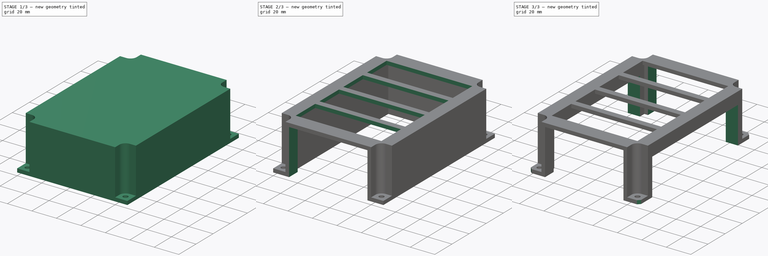
[diagram: build sequence overview — one tinted view per stage of 3, left to right]
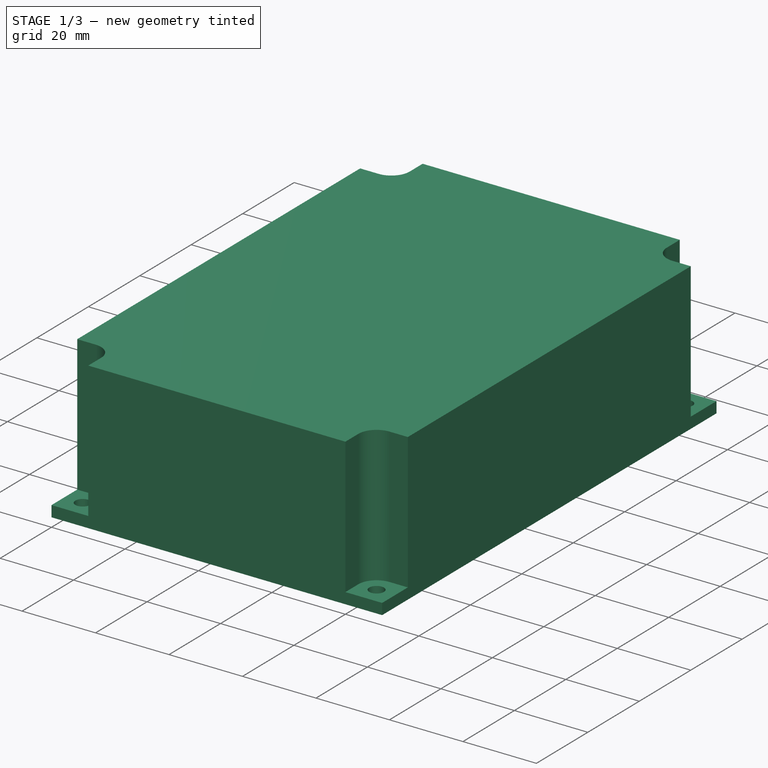
[diagram: stage 1 of 3 — iso view after this stage's code; geometry added in this stage tinted green]
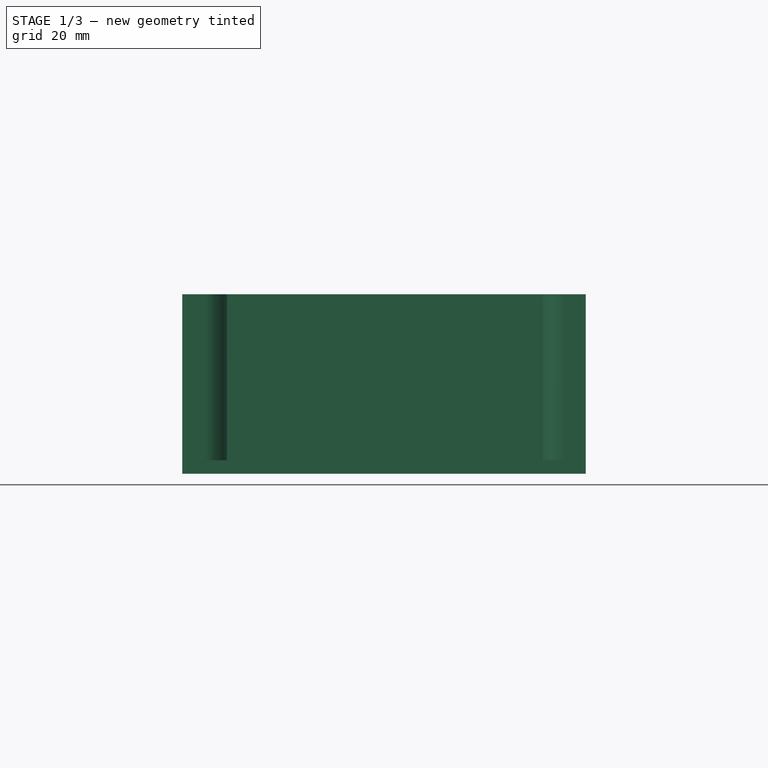
[diagram: stage 1 of 3 — front view after this stage's code; geometry added in this stage tinted green]
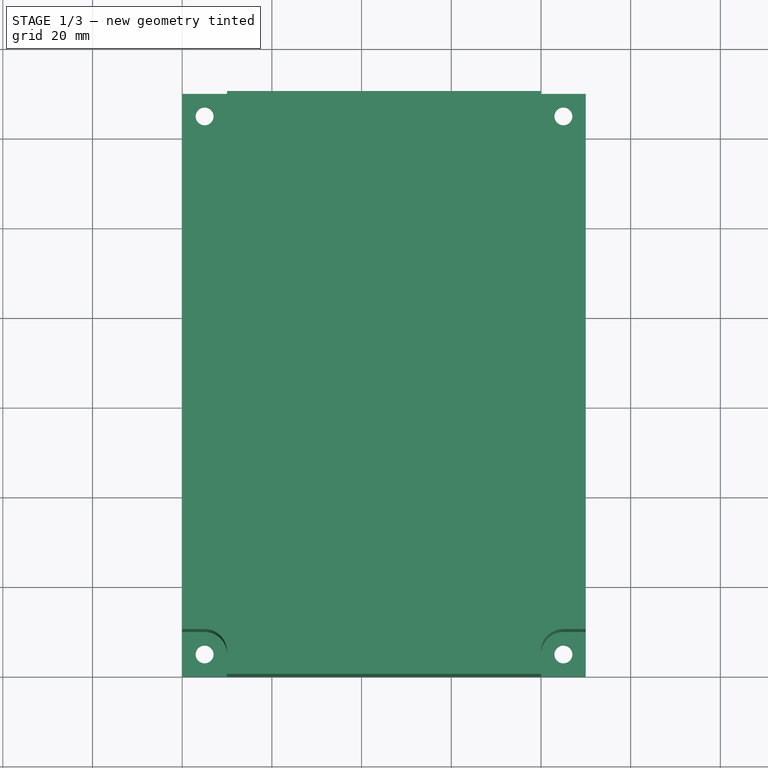
[diagram: stage 1 of 3 — top view after this stage's code; geometry added in this stage tinted green]
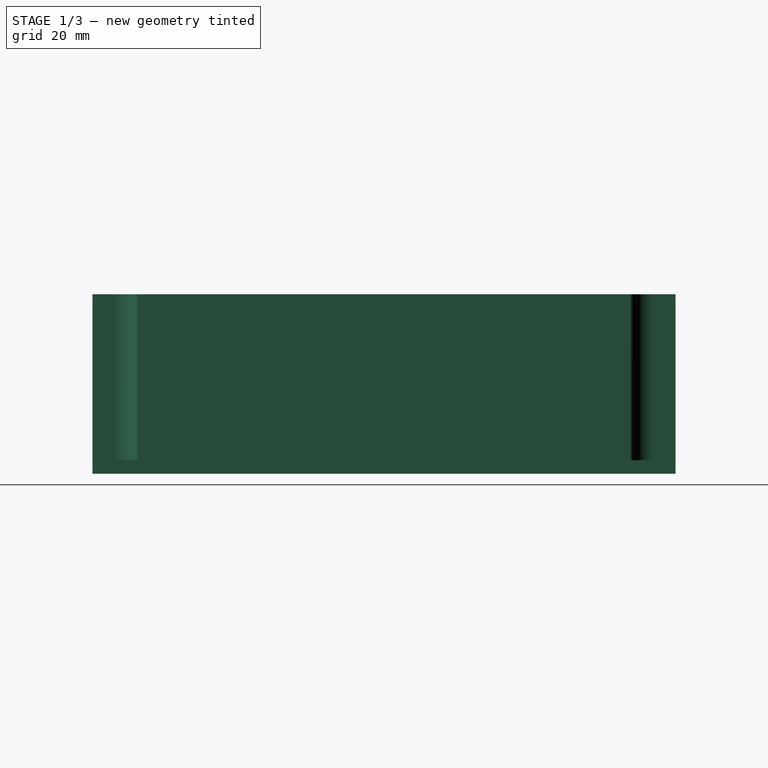
[diagram: stage 1 of 3 — right view after this stage's code; geometry added in this stage tinted green]
FCSTD DOCUMENT  (FreeCAD 0.18R14555 (Git shallow))
Label: controller-cover
License: All rights reserved
LicenseURL: http://en.wikipedia.org/wiki/All_rights_reserved
objects: Sketcher::SketchObject×7, PartDesign::Pocket×6, PartDesign::Pad×1, PartDesign::Chamfer×1, PartDesign::Body×1
note: 23 computed .brp shape members not serialized (recipe doc carries the construction recipe); baked Part::Feature solids carry a one-line shape summary decoded from their .brp

FEATURE [Sketcher::SketchObject] Sketch
  MapMode = 5
  Support = -> [XY_Plane]
  sketch-geometry (15):
    g0: LineSegment StartX=0 StartY=0 StartZ=0 EndX=90 EndY=0 EndZ=0
    g1: LineSegment StartX=90 StartY=0 StartZ=0 EndX=90 EndY=130 EndZ=0
    g2: LineSegment StartX=90 StartY=130 StartZ=0 EndX=0 EndY=130 EndZ=0
    g3: LineSegment StartX=0 StartY=130 StartZ=0 EndX=0 EndY=0 EndZ=0
    g4: LineSegment [constr] StartX=5 StartY=125 StartZ=0 EndX=85 EndY=125 EndZ=0
    g5: LineSegment [constr] StartX=85 StartY=125 StartZ=0 EndX=85 EndY=5 EndZ=0
    g6: LineSegment [constr] StartX=85 StartY=5 StartZ=0 EndX=5 EndY=5 EndZ=0
    g7: LineSegment [constr] StartX=5 StartY=5 StartZ=0 EndX=5 EndY=125 EndZ=0
    g8: LineSegment [constr] StartX=5 StartY=125 StartZ=0 EndX=0 EndY=130 EndZ=0
    g9: LineSegment [constr] StartX=85 StartY=125 StartZ=0 EndX=90 EndY=130 EndZ=0
    g10: LineSegment [constr] StartX=85 StartY=5 StartZ=0 EndX=90 EndY=0 EndZ=0
    g11: Circle CenterX=5 CenterY=125 CenterZ=0 NormalX=0 NormalY=0 NormalZ=1 AngleXU=0 Radius=2
    g12: Circle CenterX=85 CenterY=125 CenterZ=0 NormalX=0 NormalY=0 NormalZ=1 AngleXU=0 Radius=2
    g13: Circle CenterX=85 CenterY=5 CenterZ=0 NormalX=0 NormalY=0 NormalZ=1 AngleXU=0 Radius=2
    g14: Circle CenterX=5 CenterY=5 CenterZ=0 NormalX=0 NormalY=0 NormalZ=1 AngleXU=0 Radius=2
  constraints (37):
    c: Coincident(g0,g1)
    c: Coincident(g1,g2)
    c: Coincident(g2,g3)
    c: Coincident(g3,g0)
    c: Horizontal(g0)
    c: Horizontal(g2)
    c: Vertical(g1)
    c: Vertical(g3)
    c: Coincident(g0,g-1)
    c: DistanceX(g2,g2) = 90
    c: DistanceY(g1,g1) = 130
    c: Coincident(g4,g5)
    c: Coincident(g5,g6)
    c: Coincident(g6,g7)
    c: Coincident(g7,g4)
    c: Horizontal(g4)
    c: Horizontal(g6)
    c: Vertical(g5)
    c: Vertical(g7)
    c: Coincident(g8,g4)
    c: Coincident(g8,g2)
    c: Coincident(g9,g4)
    c: Coincident(g9,g1)
    c: Coincident(g10,g5)
    c: Coincident(g10,g0)
    c: Equal(g10,g9)
    c: Equal(g9,g8)
    c: DistanceX(g2,g4) = 5
    c: DistanceY(g4,g2) = 5
    c: Coincident(g11,g4)
    c: Coincident(g12,g4)
    c: Coincident(g13,g5)
    c: Coincident(g14,g6)
    c: Equal(g14,g13)
    c: Equal(g13,g12)
    c: Equal(g12,g11)
    c: Radius(g11) = 2
FEATURE [PartDesign::Pad] Pad
  Length = 40
  Length2 = 100
  Profile = -> Sketch
  Type = 0
FEATURE [Sketcher::SketchObject] Sketch001
  ExternalGeometry = -> [Pad]
  MapMode = 5
  Placement = pos=(0,0,40) rot=(0,0,1;0rad)
  Support = -> [Pad]
  sketch-geometry (20):
    g0: ArcOfCircle CenterX=5 CenterY=125 CenterZ=0 NormalX=0 NormalY=0 NormalZ=1 AngleXU=0 Radius=5 StartAngle=4.71239 EndAngle=6.28319
    g1: LineSegment StartX=5 StartY=120 StartZ=0 EndX=0 EndY=120 EndZ=0
    g2: LineSegment StartX=10 StartY=125 StartZ=0 EndX=10 EndY=130 EndZ=0
    g3: LineSegment StartX=10 StartY=130 StartZ=0 EndX=0 EndY=130 EndZ=0
    g4: LineSegment StartX=0 StartY=130 StartZ=0 EndX=0 EndY=120 EndZ=0
    g5: LineSegment StartX=80 StartY=125 StartZ=0 EndX=80 EndY=130 EndZ=0
    g6: LineSegment StartX=80 StartY=130 StartZ=0 EndX=90 EndY=130 EndZ=0
    g7: LineSegment StartX=90 StartY=130 StartZ=0 EndX=90 EndY=120 EndZ=0
    g8: LineSegment StartX=90 StartY=120 StartZ=0 EndX=85 EndY=120 EndZ=0
    g9: ArcOfCircle CenterX=85 CenterY=125 CenterZ=0 NormalX=0 NormalY=0 NormalZ=1 AngleXU=0 Radius=5 StartAngle=3.14159 EndAngle=4.71239
    g10: LineSegment StartX=80 StartY=5 StartZ=0 EndX=80 EndY=0 EndZ=0
    g11: LineSegment StartX=80 StartY=0 StartZ=0 EndX=90 EndY=0 EndZ=0
    g12: LineSegment StartX=90 StartY=0 StartZ=0 EndX=90 EndY=10 EndZ=0
    g13: LineSegment StartX=90 StartY=10 StartZ=0 EndX=85 EndY=10 EndZ=0
    g14: ArcOfCircle CenterX=85 CenterY=5 CenterZ=0 NormalX=0 NormalY=0 NormalZ=1 AngleXU=0 Radius=5 StartAngle=1.5708 EndAngle=3.14159
    g15: LineSegment StartX=0 StartY=10 StartZ=0 EndX=0 EndY=0 EndZ=0
    g16: LineSegment StartX=0 StartY=0 StartZ=0 EndX=10 EndY=0 EndZ=0
    g17: LineSegment StartX=10 StartY=0 StartZ=0 EndX=10 EndY=5 EndZ=0
    g18: LineSegment StartX=0 StartY=10 StartZ=0 EndX=5 EndY=10 EndZ=0
    g19: ArcOfCircle CenterX=5 CenterY=5 CenterZ=0 NormalX=0 NormalY=0 NormalZ=1 AngleXU=0 Radius=5 StartAngle=0 EndAngle=1.5708
  constraints (48):
    c: Coincident(g0,g-3)
    c: Horizontal(g1)
    c: Tangent(g0,g2) = -1.5708
    c: Coincident(g2,g3)
    c: Horizontal(g3)
    c: Coincident(g3,g4)
    c: Coincident(g4,g1)
    c: Vertical(g4)
    c: Tangent(g1,g0) = 1.5708
    c: Vertical(g2)
    c: Coincident(g3,g-7)
    c: Radius(g0) = 5
    c: Vertical(g5)
    c: Coincident(g5,g6)
    c: Horizontal(g6)
    c: Coincident(g6,g7)
    c: Vertical(g7)
    c: Coincident(g7,g8)
    c: Horizontal(g8)
    c: Coincident(g6,g-7)
    c: Coincident(g9,g-6)
    c: Tangent(g9,g8) = 1.5708
    c: Tangent(g9,g5) = 1.5708
    c: Equal(g0,g9)
    c: Vertical(g10)
    c: Coincident(g10,g11)
    c: Horizontal(g11)
    c: Coincident(g11,g12)
    c: Vertical(g12)
    c: Coincident(g12,g13)
    c: Horizontal(g13)
    c: Tangent(g14,g10) = -1.5708
    c: Tangent(g14,g13) = -1.5708
    c: Coincident(g11,g-8)
    c: Coincident(g14,g-5)
    c: Equal(g14,g9)
    c: Vertical(g15)
    c: Coincident(g15,g16)
    c: Horizontal(g16)
    c: Coincident(g16,g17)
    c: Vertical(g17)
    c: Coincident(g18,g15)
    c: Horizontal(g18)
    c: Tangent(g19,g18) = 1.5708
    c: Tangent(g19,g17) = -1.5708
    c: Coincident(g15,g-1)
    c: Coincident(g19,g-4)
    c: Equal(g19,g14)
FEATURE [PartDesign::Pocket] Pocket
  BaseFeature = -> Pad
  Length = 37
  Length2 = 100
  Profile = -> Sketch001
  Type = 0
FEATURE [Sketcher::SketchObject] Sketch002
  ExternalGeometry = -> [Pocket]
  MapMode = 5
  Placement = pos=(0,0,0) rot=(1,0,0;3.14159rad)
  Support = -> [Pocket]
  sketch-geometry (7):
    g0: LineSegment StartX=10 StartY=-10 StartZ=0 EndX=80 EndY=-10 EndZ=0
    g1: LineSegment StartX=80 StartY=-10 StartZ=0 EndX=80 EndY=-120 EndZ=0
    g2: LineSegment StartX=80 StartY=-120 StartZ=0 EndX=10 EndY=-120 EndZ=0
    g3: LineSegment StartX=10 StartY=-120 StartZ=0 EndX=10 EndY=-10 EndZ=0
    g4: LineSegment [constr] StartX=90 StartY=-130 StartZ=0 EndX=80 EndY=-120 EndZ=0
    g5: LineSegment [constr] StartX=80 StartY=-10 StartZ=0 EndX=90 EndY=0 EndZ=0
    g6: LineSegment [constr] StartX=10 StartY=-10 StartZ=0 EndX=0 EndY=0 EndZ=0
  constraints (18):
    c: Coincident(g0,g1)
    c: Coincident(g1,g2)
    c: Coincident(g2,g3)
    c: Coincident(g3,g0)
    c: Horizontal(g0)
    c: Horizontal(g2)
    c: Vertical(g1)
    c: Vertical(g3)
    c: Coincident(g4,g-3)
    c: Coincident(g4,g1)
    c: Coincident(g5,g0)
    c: Coincident(g5,g-4)
    c: Coincident(g6,g0)
    c: Coincident(g6,g-1)
    c: Equal(g4,g5)
    c: Equal(g5,g6)
    c: DistanceX(g-1,g0) = 10
    c: DistanceY(g0,g-1) = 10
FEATURE [PartDesign::Pocket] Pocket001
  BaseFeature = -> Pocket
  Length = 37
  Length2 = 100
  Profile = -> Sketch002
  Type = 0
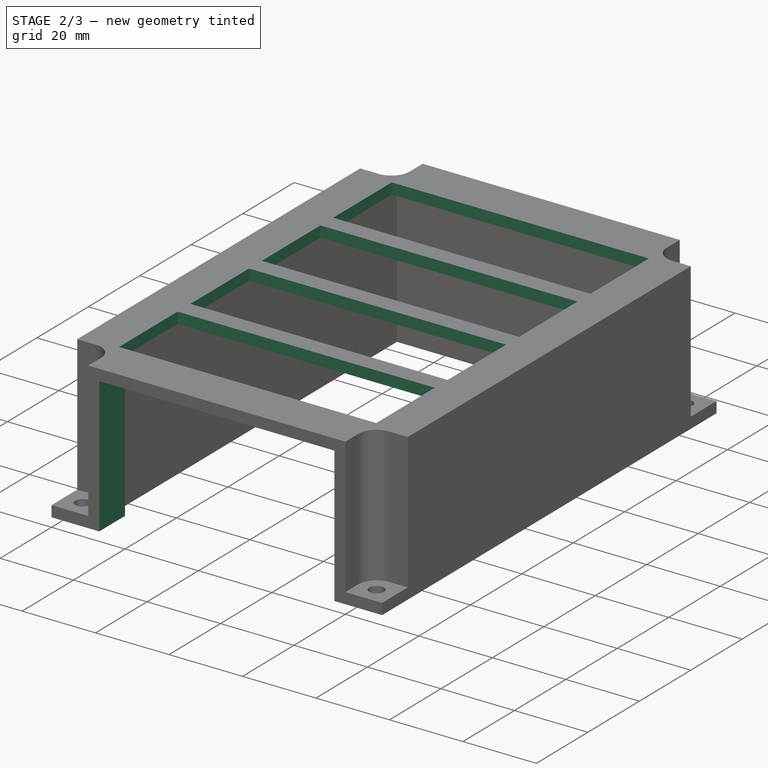
[diagram: stage 2 of 3 — iso view after this stage's code; geometry added in this stage tinted green]
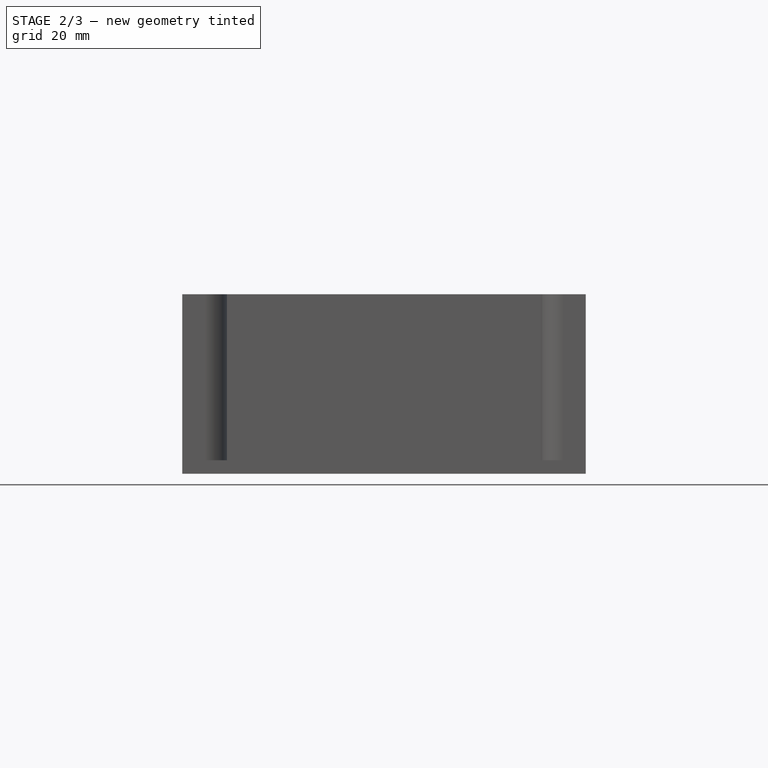
[diagram: stage 2 of 3 — front view after this stage's code; geometry added in this stage tinted green]
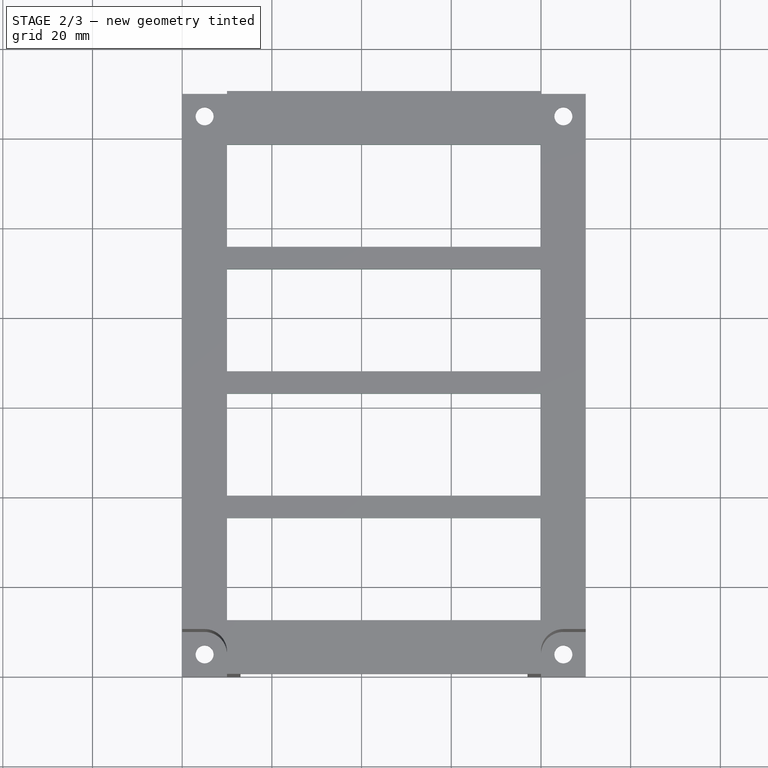
[diagram: stage 2 of 3 — top view after this stage's code; geometry added in this stage tinted green]
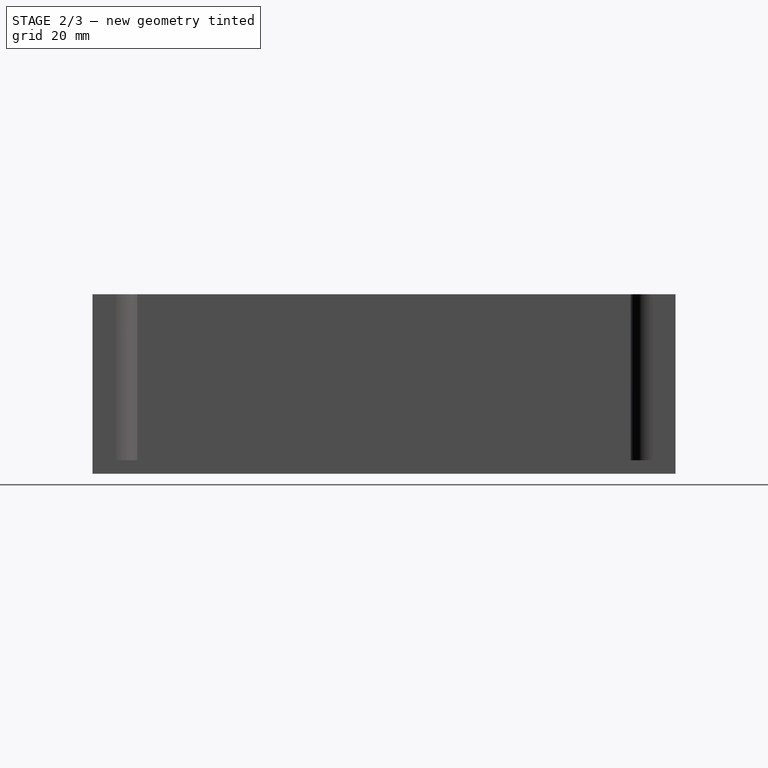
[diagram: stage 2 of 3 — right view after this stage's code; geometry added in this stage tinted green]
FEATURE [Sketcher::SketchObject] Sketch003
  ExternalGeometry = -> [Pocket001]
  MapMode = 5
  Placement = pos=(0,0,0) rot=(1,0,0;1.5708rad)
  Support = -> [Pocket001]
  sketch-geometry (6):
    g0: LineSegment StartX=13 StartY=0 StartZ=0 EndX=77 EndY=0 EndZ=0
    g1: LineSegment StartX=77 StartY=0 StartZ=0 EndX=77 EndY=37 EndZ=0
    g2: LineSegment StartX=77 StartY=37 StartZ=0 EndX=13 EndY=37 EndZ=0
    g3: LineSegment StartX=13 StartY=37 StartZ=0 EndX=13 EndY=0 EndZ=0
    g4: LineSegment [constr] StartX=10 StartY=37 StartZ=0 EndX=13 EndY=37 EndZ=0
    g5: LineSegment [constr] StartX=77 StartY=37 StartZ=0 EndX=80 EndY=37 EndZ=0
  constraints (16):
    c: Coincident(g0,g1)
    c: Coincident(g1,g2)
    c: Coincident(g2,g3)
    c: Coincident(g3,g0)
    c: Horizontal(g0)
    c: Horizontal(g2)
    c: Vertical(g1)
    c: Vertical(g3)
    c: PointOnObject(g0,g-1)
    c: Coincident(g4,g-3)
    c: Coincident(g4,g2)
    c: Horizontal(g4)
    c: Coincident(g5,g1)
    c: Coincident(g5,g-4)
    c: Equal(g5,g4)
    c: DistanceX(g4,g4) = 3
FEATURE [PartDesign::Pocket] Pocket002
  BaseFeature = -> Pocket001
  Length = 10
  Length2 = 100
  Profile = -> Sketch003
  Type = 0
FEATURE [Sketcher::SketchObject] Sketch004
  ExternalGeometry = -> [Pocket002]
  MapMode = 5
  Placement = pos=(0,0,40) rot=(0,0,1;0rad)
  Support = -> [Pocket002]
  sketch-geometry (25):
    g0: LineSegment StartX=10 StartY=118 StartZ=0 EndX=80 EndY=118 EndZ=0
    g1: LineSegment StartX=80 StartY=118 StartZ=0 EndX=80 EndY=95.25 EndZ=0
    g2: LineSegment StartX=80 StartY=95.25 StartZ=0 EndX=10 EndY=95.25 EndZ=0
    g3: LineSegment StartX=10 StartY=95.25 StartZ=0 EndX=10 EndY=118 EndZ=0
    g4: LineSegment StartX=10 StartY=90.25 StartZ=0 EndX=80 EndY=90.25 EndZ=0
    g5: LineSegment StartX=80 StartY=90.25 StartZ=0 EndX=80 EndY=67.5 EndZ=0
    g6: LineSegment StartX=80 StartY=67.5 StartZ=0 EndX=10 EndY=67.5 EndZ=0
    g7: LineSegment StartX=10 StartY=67.5 StartZ=0 EndX=10 EndY=90.25 EndZ=0
    g8: LineSegment StartX=10 StartY=34.75 StartZ=0 EndX=80 EndY=34.75 EndZ=0
    g9: LineSegment StartX=80 StartY=34.75 StartZ=0 EndX=80 EndY=12 EndZ=0
    g10: LineSegment StartX=80 StartY=12 StartZ=0 EndX=10 EndY=12 EndZ=0
    g11: LineSegment StartX=10 StartY=12 StartZ=0 EndX=10 EndY=34.75 EndZ=0
    g12: LineSegment StartX=10 StartY=62.5 StartZ=0 EndX=80 EndY=62.5 EndZ=0
    g13: LineSegment StartX=80 StartY=62.5 StartZ=0 EndX=80 EndY=39.75 EndZ=0
    g14: LineSegment StartX=80 StartY=39.75 StartZ=0 EndX=10 EndY=39.75 EndZ=0
    g15: LineSegment StartX=10 StartY=39.75 StartZ=0 EndX=10 EndY=62.5 EndZ=0
    g16: LineSegment [constr] StartX=10 StartY=34.75 StartZ=0 EndX=10 EndY=39.75 EndZ=0
    g17: LineSegment [constr] StartX=10 StartY=62.5 StartZ=0 EndX=10 EndY=67.5 EndZ=0
    g18: LineSegment [constr] StartX=10 StartY=90.25 StartZ=0 EndX=10 EndY=95.25 EndZ=0
    g19: LineSegment [constr] StartX=80 StartY=90.25 StartZ=0 EndX=80 EndY=95.25 EndZ=0
    g20: LineSegment [constr] StartX=80 StartY=62.5 StartZ=0 EndX=80 EndY=67.5 EndZ=0
    g21: LineSegment [constr] StartX=80 StartY=34.75 StartZ=0 EndX=80 EndY=39.75 EndZ=0
    g22: LineSegment [constr] StartX=10 StartY=0 StartZ=0 EndX=10 EndY=12 EndZ=0
    g23: LineSegment [constr] StartX=80 StartY=0 StartZ=0 EndX=80 EndY=12 EndZ=0
    g24: LineSegment [constr] StartX=10 StartY=118 StartZ=0 EndX=10 EndY=130 EndZ=0
  constraints (66):
    c: Coincident(g0,g1)
    c: Coincident(g1,g2)
    c: Coincident(g2,g3)
    c: Coincident(g3,g0)
    c: Horizontal(g0)
    c: Horizontal(g2)
    c: Vertical(g1)
    c: Vertical(g3)
    c: Coincident(g4,g5)
    c: Coincident(g5,g6)
    c: Coincident(g6,g7)
    c: Coincident(g7,g4)
    c: Horizontal(g4)
    c: Horizontal(g6)
    c: Vertical(g5)
    c: Vertical(g7)
    c: Coincident(g8,g9)
    c: Coincident(g9,g10)
    c: Coincident(g10,g11)
    c: Coincident(g11,g8)
    c: Horizontal(g8)
    c: Horizontal(g10)
    c: Vertical(g9)
    c: Vertical(g11)
    c: Coincident(g12,g13)
    c: Coincident(g13,g14)
    c: Coincident(g14,g15)
    c: Coincident(g15,g12)
    c: Horizontal(g12)
    c: Horizontal(g14)
    c: Vertical(g13)
    c: Vertical(g15)
    c: Coincident(g16,g8)
    c: Coincident(g16,g14)
    c: Vertical(g16)
    c: Coincident(g17,g12)
    c: Coincident(g17,g6)
    c: Coincident(g18,g4)
    c: Coincident(g18,g2)
    c: Coincident(g19,g4)
    c: Coincident(g19,g1)
    c: Coincident(g20,g12)
    c: Coincident(g20,g5)
    c: Coincident(g21,g8)
    c: Coincident(g21,g13)
    c: Vertical(g18)
    c: Vertical(g17)
    c: Vertical(g19)
    c: Vertical(g20)
    c: Vertical(g21)
    c: Equal(g11,g15)
    c: Equal(g15,g7)
    c: Equal(g7,g3)
    c: Equal(g18,g17)
    c: Equal(g17,g16)
    c: Coincident(g22,g-4)
    c: Coincident(g22,g10)
    c: Vertical(g22)
    c: Coincident(g23,g-4)
    c: Coincident(g23,g9)
    c: Vertical(g23)
    c: Coincident(g24,g0)
    c: Coincident(g24,g-3)
    c: Equal(g24,g22)
    c: DistanceY(g24,g24) = 12
    c: DistanceY(g18,g18) = 5
FEATURE [PartDesign::Pocket] Pocket003
  BaseFeature = -> Pocket002
  Length = 3
  Length2 = 100
  Profile = -> Sketch004
  Type = 0
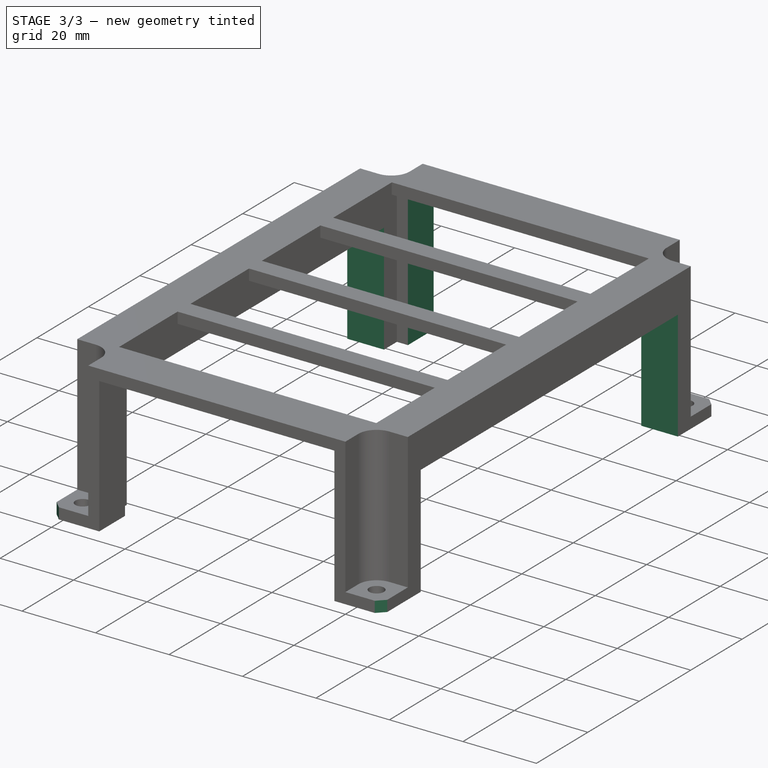
[diagram: stage 3 of 3 — iso view after this stage's code; geometry added in this stage tinted green]
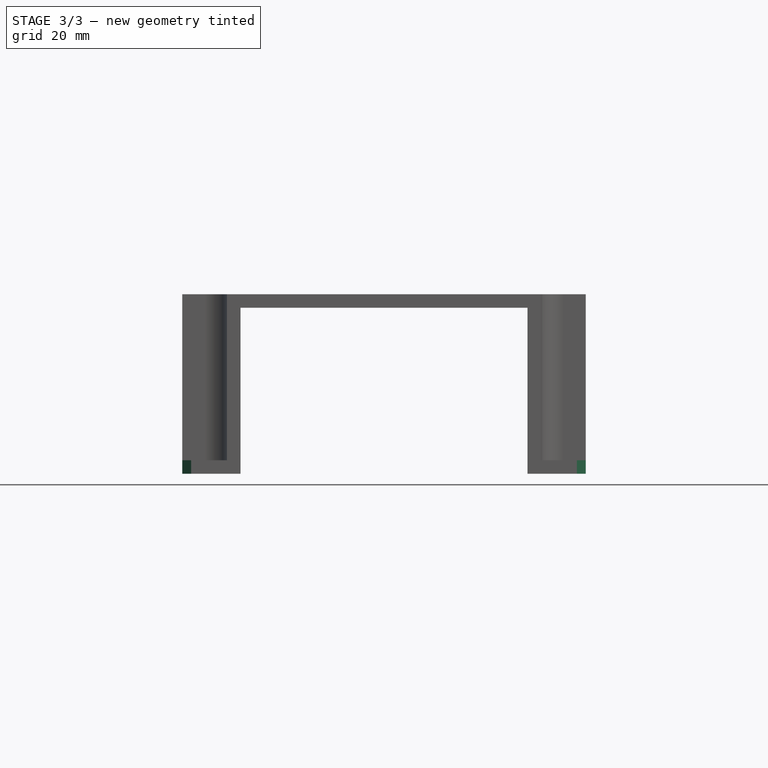
[diagram: stage 3 of 3 — front view after this stage's code; geometry added in this stage tinted green]
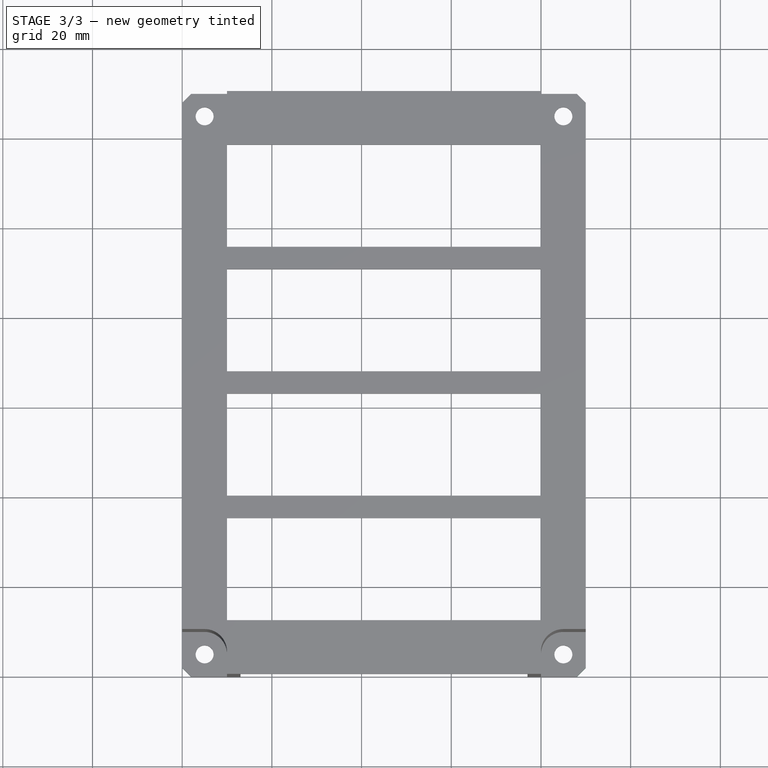
[diagram: stage 3 of 3 — top view after this stage's code; geometry added in this stage tinted green]
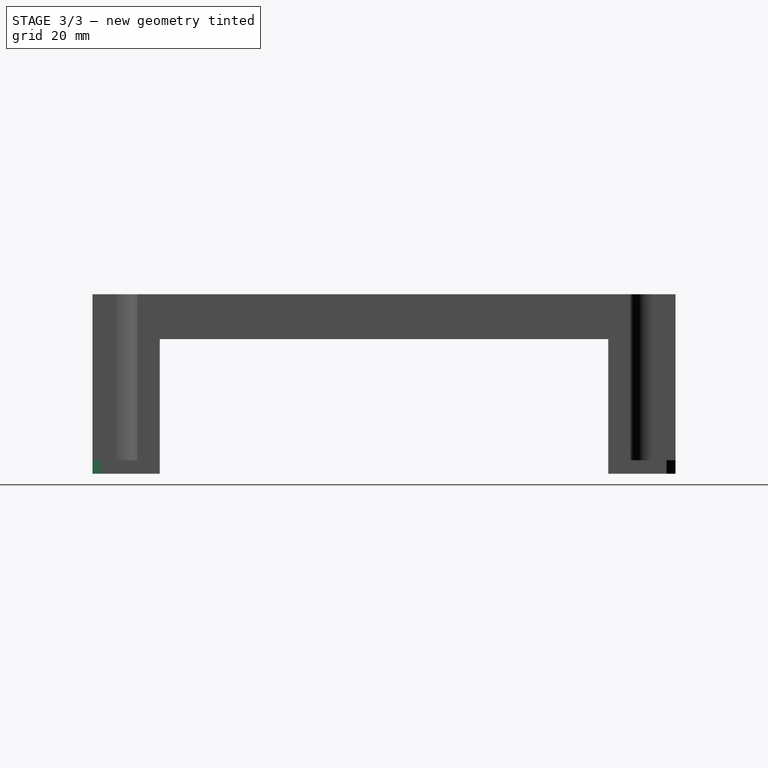
[diagram: stage 3 of 3 — right view after this stage's code; geometry added in this stage tinted green]
FEATURE [PartDesign::Chamfer] Chamfer
  Base = -> Pocket003 [Edge6,Edge32,Edge12,Edge82]
  BaseFeature = -> Pocket003
  Size = 2
FEATURE [Sketcher::SketchObject] Sketch005
  ExternalGeometry = -> [Chamfer]
  MapMode = 5
  Placement = pos=(0,0,0) rot=(0.57735,-0.57735,-0.57735;2.0944rad)
  Support = -> [Chamfer]
  sketch-geometry (6):
    g0: LineSegment StartX=-115 StartY=30 StartZ=0 EndX=-15 EndY=30 EndZ=0
    g1: LineSegment StartX=-15 StartY=30 StartZ=0 EndX=-15 EndY=0 EndZ=0
    g2: LineSegment StartX=-15 StartY=0 StartZ=0 EndX=-115 EndY=0 EndZ=0
    g3: LineSegment StartX=-115 StartY=0 StartZ=0 EndX=-115 EndY=30 EndZ=0
    g4: LineSegment [constr] StartX=-115 StartY=30 StartZ=0 EndX=-120 EndY=40 EndZ=0
    g5: LineSegment [constr] StartX=-15 StartY=30 StartZ=0 EndX=-10 EndY=40 EndZ=0
  constraints (16):
    c: Coincident(g0,g1)
    c: Coincident(g1,g2)
    c: Coincident(g2,g3)
    c: Coincident(g3,g0)
    c: Horizontal(g0)
    c: Horizontal(g2)
    c: Vertical(g1)
    c: Vertical(g3)
    c: Coincident(g4,g-3)
    c: Coincident(g5,g0)
    c: Coincident(g5,g-3)
    c: Equal(g5,g4)
    c: PointOnObject(g2,g-1)
    c: Coincident(g4,g0)
    c: DistanceX(g4,g0) = 5
    c: DistanceY(g0,g4) = 10
FEATURE [PartDesign::Pocket] Pocket004
  BaseFeature = -> Chamfer
  Length = 10
  Length2 = 100
  Profile = -> Sketch005
  Type = 1
FEATURE [Sketcher::SketchObject] Sketch006
  ExternalGeometry = -> [Pocket004]
  MapMode = 5
  Placement = pos=(0,130,0) rot=(0,0.707107,0.707107;3.14159rad)
  Support = -> [Pocket004]
  sketch-geometry (4):
    g0: LineSegment StartX=-77 StartY=37 StartZ=0 EndX=-13 EndY=37 EndZ=0
    g1: LineSegment StartX=-13 StartY=37 StartZ=0 EndX=-13 EndY=0 EndZ=0
    g2: LineSegment StartX=-13 StartY=0 StartZ=0 EndX=-77 EndY=0 EndZ=0
    g3: LineSegment StartX=-77 StartY=0 StartZ=0 EndX=-77 EndY=37 EndZ=0
  constraints (10):
    c: Coincident(g0,g1)
    c: Coincident(g1,g2)
    c: Coincident(g2,g3)
    c: Coincident(g3,g0)
    c: Horizontal(g2)
    c: Vertical(g1)
    c: Vertical(g3)
    c: Coincident(g0,g-3)
    c: Coincident(g0,g-3)
    c: PointOnObject(g1,g-1)
FEATURE [PartDesign::Pocket] Pocket005
  BaseFeature = -> Pocket004
  Length = 10
  Length2 = 100
  Profile = -> Sketch006
  Type = 0
FEATURE [PartDesign::Body] Body
  Group = -> [Sketch,Pad,Sketch001,Pocket,Sketch002,Pocket001,Sketch003,Pocket002,Sketch004,Pocket003,Chamfer,Sketch005,Pocket004,Sketch006,Pocket005]
  Origin = -> Origin
  Tip = -> Pocket005
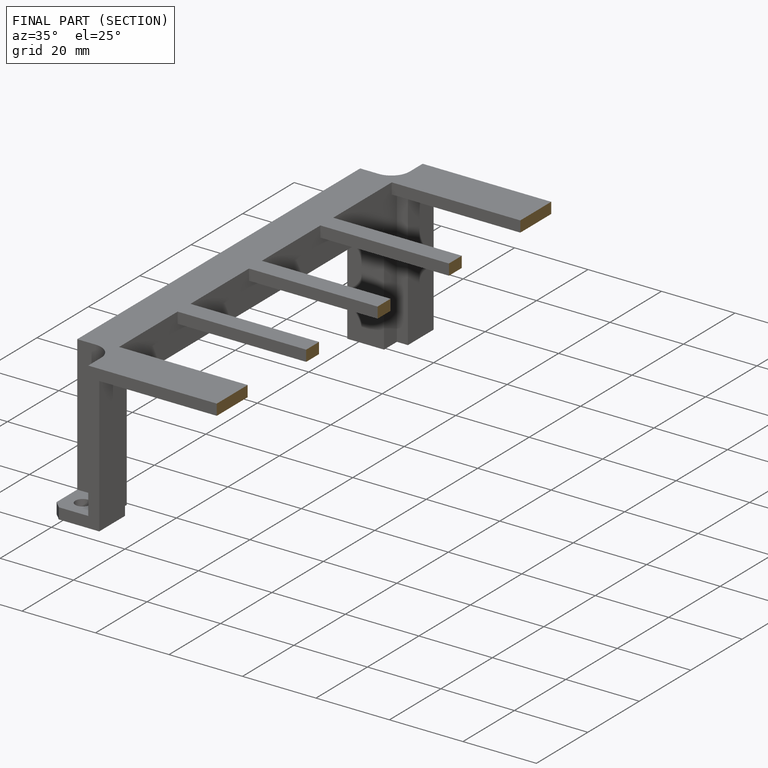
[diagram: finished part — half-section view (interior)]
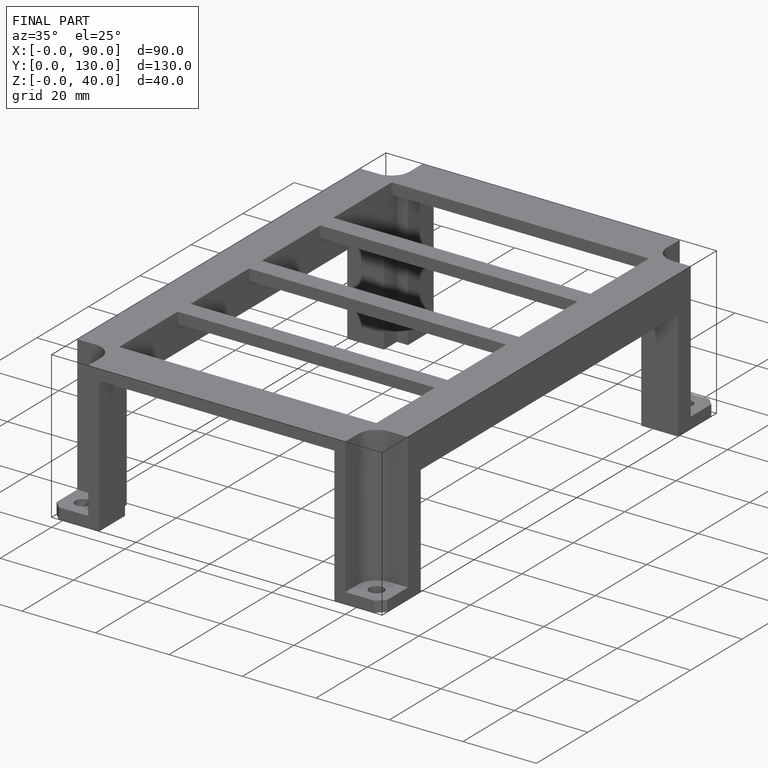
[diagram: finished part — iso view with bounding-box wireframe]
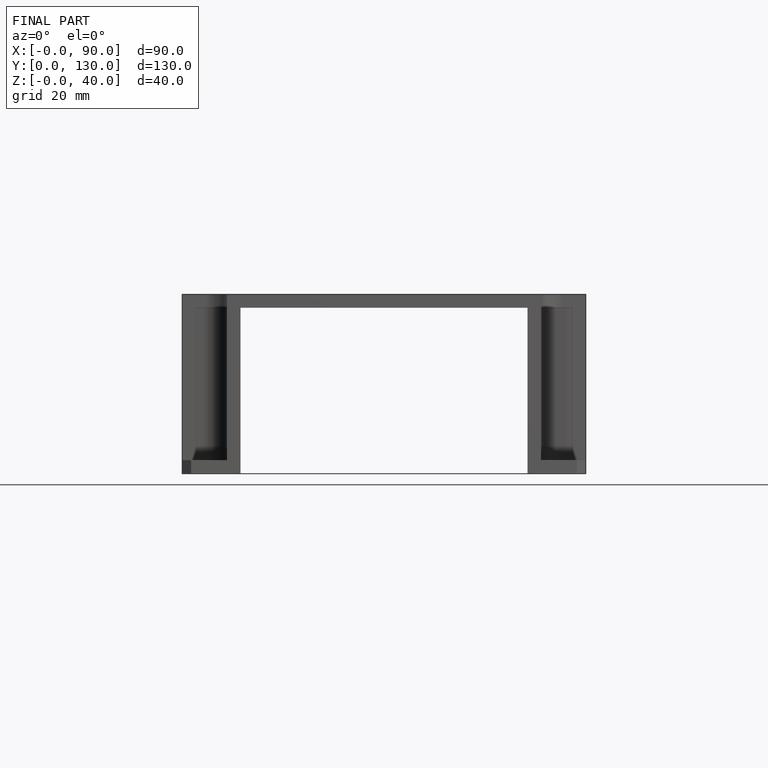
[diagram: finished part — front view with bounding-box wireframe]
